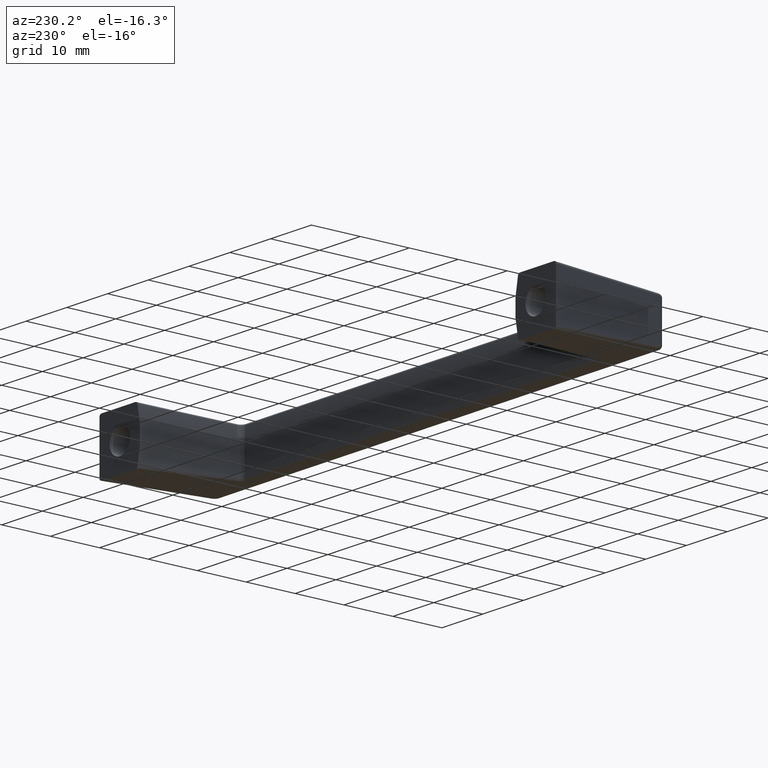
[diagram: clean part render]
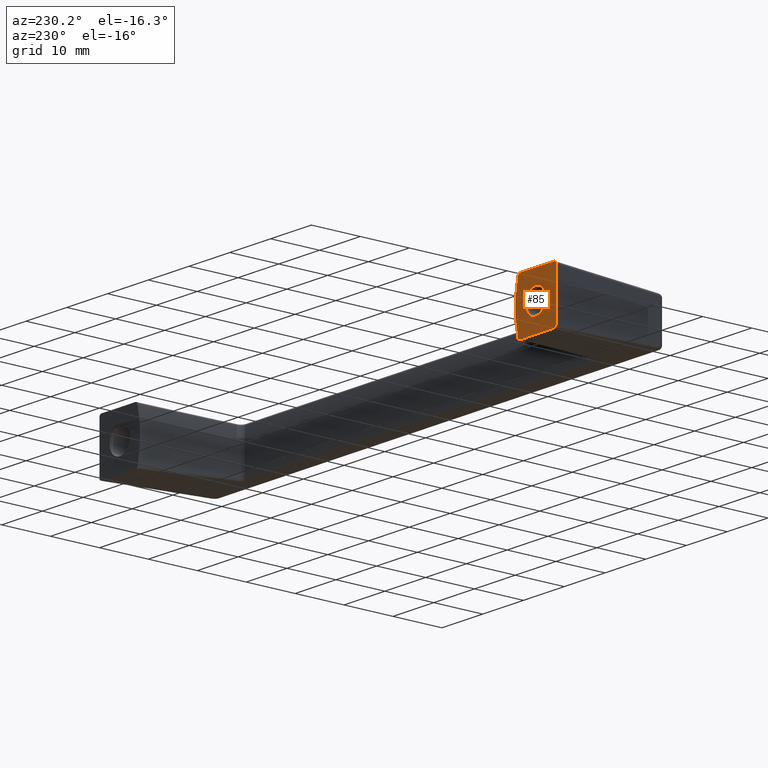
[diagram: same view with one face highlighted and labeled with its STEP entity id]
A machine part, auxiliary view. The second image highlights one B-rep face of the part: STEP entity #85.
In plain terms, the highlighted planar face has unit normal (0, -1, 0).
Its self-contained STEP definition (entity closure, byte-faithful):
#85=ADVANCED_FACE('',(#217,#218),#216,.F.);
#216=PLANE('',#659);
#217=FACE_OUTER_BOUND('',#660,.T.);
#218=FACE_BOUND('',#661,.T.);
#656=CARTESIAN_POINT('',(-5.70693879187E+001,-6.60000000000E+000,0.00000000000E+000));
#657=DIRECTION('',(0.00000000000E+000,0.00000000000E+000,1.00000000000E+000));
#658=DIRECTION('',(1.00000000000E+000,0.00000000000E+000,0.00000000000E+000));
#659=AXIS2_PLACEMENT_3D('',#656,#657,#658);
#660=EDGE_LOOP('',(#979,#980,#981,#982,#983,#984,#985,#986));
#661=EDGE_LOOP('',(#987,#988));
#979=ORIENTED_EDGE('',*,*,#1130,.F.);
#980=ORIENTED_EDGE('',*,*,#1139,.T.);
#981=ORIENTED_EDGE('',*,*,#1155,.T.);
#982=ORIENTED_EDGE('',*,*,#1156,.T.);
#983=ORIENTED_EDGE('',*,*,#1157,.T.);
#984=ORIENTED_EDGE('',*,*,#1158,.T.);
#985=ORIENTED_EDGE('',*,*,#1153,.F.);
#986=ORIENTED_EDGE('',*,*,#1159,.T.);
#987=ORIENTED_EDGE('',*,*,#1160,.F.);
#988=ORIENTED_EDGE('',*,*,#1161,.F.);
#1130=EDGE_CURVE('',#1327,#1334,#1335,.T.);
#1139=EDGE_CURVE('',#1327,#1395,#1396,.T.);
#1153=EDGE_CURVE('',#1483,#1490,#1491,.T.);
#1155=EDGE_CURVE('',#1395,#1503,#1504,.T.);
#1156=EDGE_CURVE('',#1503,#1510,#1511,.T.);
#1157=EDGE_CURVE('',#1510,#1517,#1518,.T.);
#1158=EDGE_CURVE('',#1517,#1490,#1524,.T.);
#1159=EDGE_CURVE('',#1483,#1334,#1530,.T.);
#1160=EDGE_CURVE('',#1536,#1537,#1538,.T.);
#1161=EDGE_CURVE('',#1537,#1536,#1544,.T.);
#1327=VERTEX_POINT('',#1947);
#1334=VERTEX_POINT('',#1951);
#1335=LINE('',#1952,#1953);
#1395=VERTEX_POINT('',#1985);
#1396=(BOUNDED_CURVE() B_SPLINE_CURVE(3,(#1986,#1987,#1988,#1989,#1990,#1991),.UNSPECIFIED.,.F.,.F.) B_SPLINE_CURVE_WITH_KNOTS((4,2,4),(0.00000000000E+000,3.34886073056E-004,6.69772146111E-004),.UNSPECIFIED.) CURVE() GEOMETRIC_REPRESENTATION_ITEM() RATIONAL_B_SPLINE_CURVE((1.00000000000E+000,1.00000000000E+000,1.00000000000E+000,1.00000000000E+000,1.00000000000E+000,1.00000000000E+000)) REPRESENTATION_ITEM('') );
#1483=VERTEX_POINT('',#2045);
#1490=VERTEX_POINT('',#2049);
#1491=LINE('',#2050,#2051);
#1503=VERTEX_POINT('',#2056);
#1504=(BOUNDED_CURVE() B_SPLINE_CURVE(2,(#2057,#2058,#2059),.UNSPECIFIED.,.F.,.F.) B_SPLINE_CURVE_WITH_KNOTS((3,3),(-3.40031758657E+000,-2.88286772061E+000),.UNSPECIFIED.) CURVE() GEOMETRIC_REPRESENTATION_ITEM() RATIONAL_B_SPLINE_CURVE((1.00000000000E+000,9.66716987402E-001,1.00000000000E+000)) REPRESENTATION_ITEM('') );
#1510=VERTEX_POINT('',#2060);
#1511=(BOUNDED_CURVE() B_SPLINE_CURVE(3,(#2061,#2062,#2063,#2064,#2065,#2066),.UNSPECIFIED.,.F.,.F.) B_SPLINE_CURVE_WITH_KNOTS((4,2,4),(0.00000000000E+000,3.34882117485E-004,6.69764234971E-004),.UNSPECIFIED.) CURVE() GEOMETRIC_REPRESENTATION_ITEM() RATIONAL_B_SPLINE_CURVE((1.00000000000E+000,1.00000000000E+000,1.00000000000E+000,1.00000000000E+000,1.00000000000E+000,1.00000000000E+000)) REPRESENTATION_ITEM('') );
#1517=VERTEX_POINT('',#2067);
#1518=LINE('',#2068,#2069);
#1524=(BOUNDED_CURVE() B_SPLINE_CURVE(2,(#2071,#2072,#2073),.UNSPECIFIED.,.F.,.F.) B_SPLINE_CURVE_WITH_KNOTS((3,3),(-3.92593247871E+000,-2.35702179154E+000),.UNSPECIFIED.) CURVE() GEOMETRIC_REPRESENTATION_ITEM() RATIONAL_B_SPLINE_CURVE((1.00000000000E+000,7.07773141094E-001,1.00000000000E+000)) REPRESENTATION_ITEM('') );
#1530=(BOUNDED_CURVE() B_SPLINE_CURVE(2,(#2074,#2075,#2076),.UNSPECIFIED.,.F.,.F.) B_SPLINE_CURVE_WITH_KNOTS((3,3),(-7.06775616923E+000,-5.49884548205E+000),.UNSPECIFIED.) CURVE() GEOMETRIC_REPRESENTATION_ITEM() RATIONAL_B_SPLINE_CURVE((1.00000000000E+000,7.07773141094E-001,1.00000000000E+000)) REPRESENTATION_ITEM('') );
#1536=VERTEX_POINT('',#2077);
#1537=VERTEX_POINT('',#2078);
#1538=CIRCLE('',#2082,2.50000000000E+000);
#1544=CIRCLE('',#2086,2.50000000000E+000);
#1947=CARTESIAN_POINT('',(-4.71642084599E+001,5.50000000000E+000,0.00000000000E+000));
#1951=CARTESIAN_POINT('',(-5.55002717409E+001,5.50000000000E+000,0.00000000000E+000));
#1952=CARTESIAN_POINT('',(-4.71642084599E+001,5.50000000000E+000,0.00000000000E+000));
#1953=VECTOR('',#1954,8.33606328100E+000);
#1954=DIRECTION('',(-1.00000000000E+000,0.00000000000E+000,0.00000000000E+000));
#1985=CARTESIAN_POINT('',(-4.66725182308E+001,5.12463806911E+000,0.00000000000E+000));
#1986=CARTESIAN_POINT('',(-4.71642084599E+001,5.50000000000E+000,5.02489066592E-015));
#1987=CARTESIAN_POINT('',(-4.70524801756E+001,5.50000000000E+000,5.02489066592E-015));
#1988=CARTESIAN_POINT('',(-4.69426811389E+001,5.46255609493E+000,-3.04344485039E-031));
#1989=CARTESIAN_POINT('',(-4.67670313045E+001,5.32899584826E+000,-0.00000000000E+000));
#1990=CARTESIAN_POINT('',(-4.67013518180E+001,5.23260385719E+000,0.00000000000E+000));
#1991=CARTESIAN_POINT('',(-4.66725182308E+001,5.12463806911E+000,0.00000000000E+000));
#2045=CARTESIAN_POINT('',(-5.59998000000E+001,5.00047152324E+000,0.00000000000E+000));
#2049=CARTESIAN_POINT('',(-5.59998000000E+001,-5.00047152324E+000,0.00000000000E+000));
#2050=CARTESIAN_POINT('',(-5.59998000000E+001,5.00047152324E+000,0.00000000000E+000));
#2051=VECTOR('',#2052,1.00009430465E+001);
#2052=DIRECTION('',(0.00000000000E+000,-1.00000000000E+000,0.00000000000E+000));
#2056=CARTESIAN_POINT('',(-4.66725182308E+001,-5.12463806911E+000,0.00000000000E+000));
#2057=CARTESIAN_POINT('',(-4.66725182308E+001,5.12463806911E+000,0.00000000000E+000));
#2058=CARTESIAN_POINT('',(-4.53039208134E+001,-5.32907051820E-015,0.00000000000E+000));
#2059=CARTESIAN_POINT('',(-4.66725182308E+001,-5.12463806911E+000,0.00000000000E+000));
#2060=CARTESIAN_POINT('',(-4.71642084599E+001,-5.50000000000E+000,0.00000000000E+000));
#2061=CARTESIAN_POINT('',(-4.66725182308E+001,-5.12463806911E+000,3.21496512037E-016));
#2062=CARTESIAN_POINT('',(-4.67013471146E+001,-5.23258624542E+000,3.21496512037E-016));
#2063=CARTESIAN_POINT('',(-4.67666293900E+001,-5.32856040292E+000,-2.85322954724E-032));
#2064=CARTESIAN_POINT('',(-4.69423259092E+001,-5.46241526636E+000,-0.00000000000E+000));
#2065=CARTESIAN_POINT('',(-4.70524998800E+001,-5.50000000000E+000,0.00000000000E+000));
#2066=CARTESIAN_POINT('',(-4.71642084599E+001,-5.50000000000E+000,0.00000000000E+000));
#2067=CARTESIAN_POINT('',(-5.55002717409E+001,-5.50000000000E+000,0.00000000000E+000));
#2068=CARTESIAN_POINT('',(-4.71642084599E+001,-5.50000000000E+000,0.00000000000E+000));
#2069=VECTOR('',#2070,8.33606328100E+000);
#2070=DIRECTION('',(-1.00000000000E+000,0.00000000000E+000,0.00000000000E+000));
#2071=CARTESIAN_POINT('',(-5.55002717409E+001,-5.50000000000E+000,0.00000000000E+000));
#2072=CARTESIAN_POINT('',(-5.59998000000E+001,-5.50000000000E+000,0.00000000000E+000));
#2073=CARTESIAN_POINT('',(-5.59998000000E+001,-5.00047152324E+000,0.00000000000E+000));
#2074=CARTESIAN_POINT('',(-5.59998000000E+001,5.00047152324E+000,0.00000000000E+000));
#2075=CARTESIAN_POINT('',(-5.59998000000E+001,5.50000000000E+000,0.00000000000E+000));
#2076=CARTESIAN_POINT('',(-5.55002717409E+001,5.50000000000E+000,0.00000000000E+000));
#2077=CARTESIAN_POINT('',(-4.85000000000E+001,1.48029736617E-016,0.00000000000E+000));
#2078=CARTESIAN_POINT('',(-5.35000000000E+001,0.00000000000E+000,0.00000000000E+000));
#2079=CARTESIAN_POINT('',(-5.10000000000E+001,0.00000000000E+000,0.00000000000E+000));
#2080=DIRECTION('',(-0.00000000000E+000,0.00000000000E+000,-1.00000000000E+000));
#2081=DIRECTION('',(-1.00000000000E+000,-1.22460635382E-016,0.00000000000E+000));
#2082=AXIS2_PLACEMENT_3D('',#2079,#2080,#2081);
#2083=CARTESIAN_POINT('',(-5.10000000000E+001,0.00000000000E+000,0.00000000000E+000));
#2084=DIRECTION('',(-0.00000000000E+000,0.00000000000E+000,-1.00000000000E+000));
#2085=DIRECTION('',(-1.00000000000E+000,-1.22460635382E-016,0.00000000000E+000));
#2086=AXIS2_PLACEMENT_3D('',#2083,#2084,#2085);